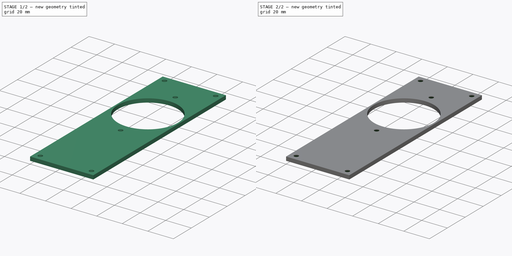
[diagram: build sequence overview — one tinted view per stage of 2, left to right]
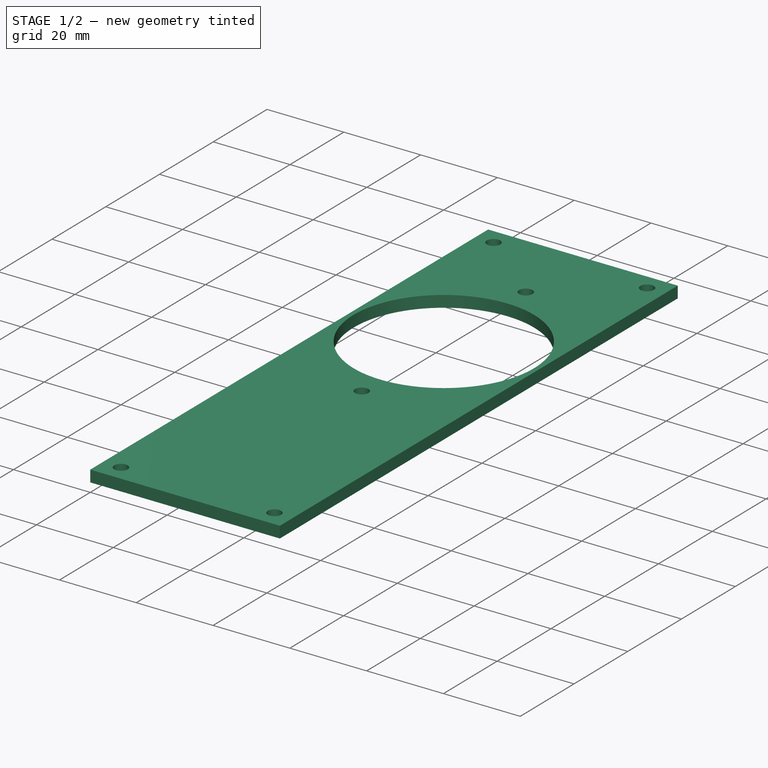
[diagram: stage 1 of 2 — iso view after this stage's code; geometry added in this stage tinted green]
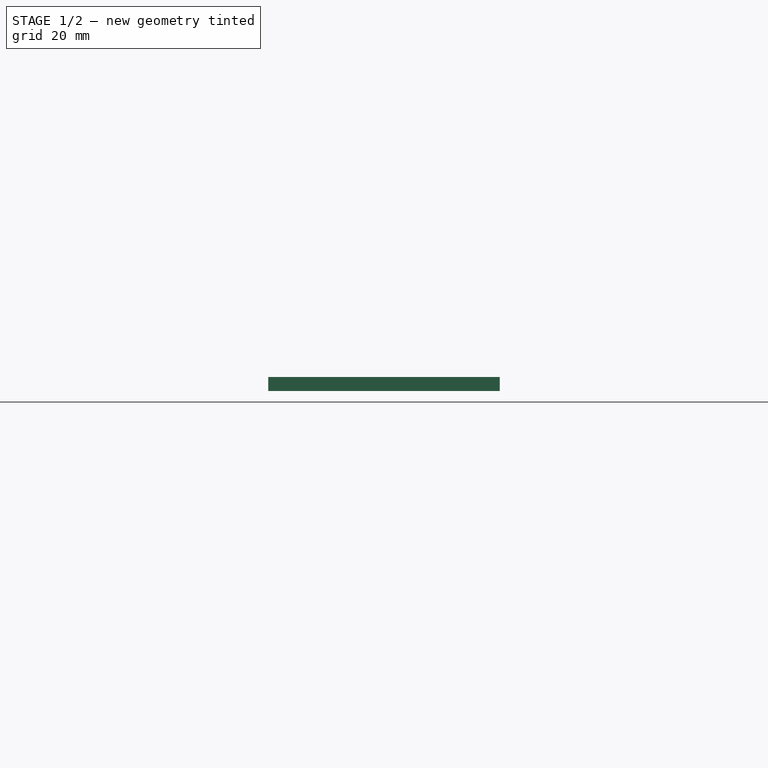
[diagram: stage 1 of 2 — front view after this stage's code; geometry added in this stage tinted green]
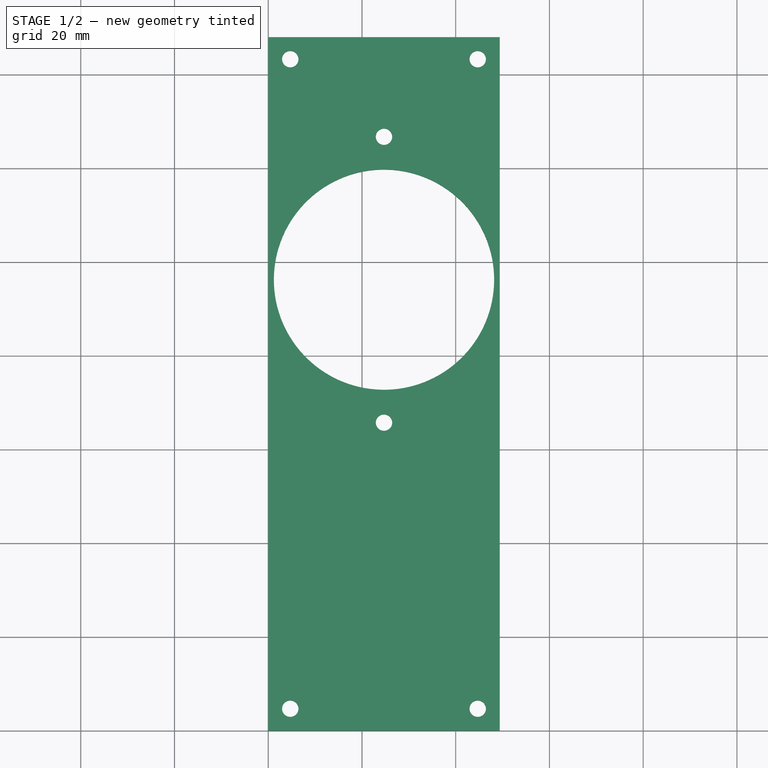
[diagram: stage 1 of 2 — top view after this stage's code; geometry added in this stage tinted green]
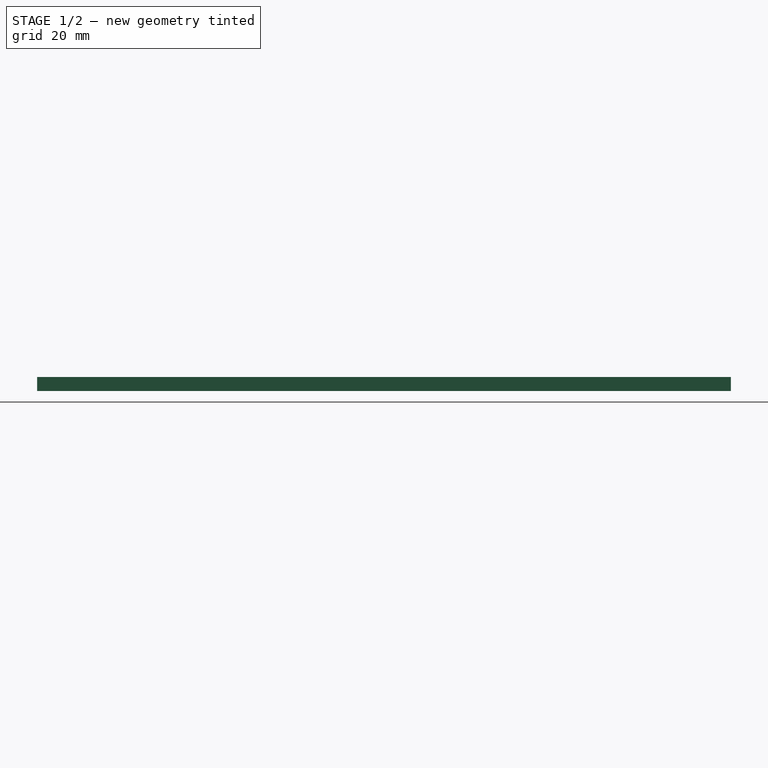
[diagram: stage 1 of 2 — right view after this stage's code; geometry added in this stage tinted green]
FCSTD DOCUMENT  (FreeCAD 0.21R33668 +7 (Git))
Label: speaker-mountplate
License: All rights reserved
LicenseURL: http://en.wikipedia.org/wiki/All_rights_reserved
objects: Sketcher::SketchObject×2, PartDesign::Pad×1, PartDesign::CoordinateSystem×1, PartDesign::Pocket×1, PartDesign::Chamfer×1, PartDesign::Body×1, App::Part×1
note: 10 computed .brp shape members not serialized (recipe doc carries the construction recipe); baked Part::Feature solids carry a one-line shape summary decoded from their .brp
EXTERNAL_REF file=planB.FCStd obj=Spreadsheet

FEATURE [Sketcher::SketchObject] Sketch
  FullyConstrained = false
  MapMode = 5
  Support = -> [XY_Plane]
  expr: Constraints[26] = planB#<<data>>.clearance_m3
  sketch-geometry (23):
    g0: LineSegment StartX=0 StartY=0 StartZ=0 EndX=49.4 EndY=0 EndZ=0
    g1: LineSegment StartX=49.4 StartY=0 StartZ=0 EndX=49.4 EndY=148 EndZ=0
    g2: LineSegment StartX=49.4 StartY=148 StartZ=0 EndX=0 EndY=148 EndZ=0
    g3: LineSegment StartX=0 StartY=148 StartZ=0 EndX=0 EndY=0 EndZ=0
    g4: LineSegment StartX=24.7 StartY=126.746 StartZ=0 EndX=24.7 EndY=96.246 EndZ=0
    g5: LineSegment StartX=24.7 StartY=96.246 StartZ=0 EndX=24.7 EndY=65.746 EndZ=0
    g6: LineSegment StartX=0 StartY=96.246 StartZ=0 EndX=24.7 EndY=96.246 EndZ=0
    g7: LineSegment StartX=24.7 StartY=96.246 StartZ=0 EndX=49.4 EndY=96.246 EndZ=0
    g8: Circle CenterX=24.7 CenterY=126.746 CenterZ=0 NormalX=0 NormalY=0 NormalZ=1 AngleXU=0 Radius=1.75
    g9: Circle CenterX=24.7 CenterY=65.746 CenterZ=0 NormalX=0 NormalY=0 NormalZ=1 AngleXU=0 Radius=1.75
    g10: Circle CenterX=24.7 CenterY=96.246 CenterZ=0 NormalX=0 NormalY=0 NormalZ=1 AngleXU=0 Radius=23.5
    g11: LineSegment StartX=4.7 StartY=143.3 StartZ=0 EndX=44.7 EndY=143.3 EndZ=0
    g12: LineSegment StartX=44.7 StartY=143.3 StartZ=0 EndX=44.7 EndY=4.7 EndZ=0
    g13: LineSegment StartX=44.7 StartY=4.7 StartZ=0 EndX=4.7 EndY=4.7 EndZ=0
    g14: LineSegment StartX=4.7 StartY=4.7 StartZ=0 EndX=4.7 EndY=143.3 EndZ=0
    g15: Circle CenterX=4.7 CenterY=143.3 CenterZ=0 NormalX=0 NormalY=0 NormalZ=1 AngleXU=0 Radius=1.75
    g16: Circle CenterX=44.7 CenterY=143.3 CenterZ=0 NormalX=0 NormalY=0 NormalZ=1 AngleXU=0 Radius=1.75
    g17: Circle CenterX=4.7 CenterY=4.7 CenterZ=0 NormalX=0 NormalY=0 NormalZ=1 AngleXU=0 Radius=1.75
    g18: Circle CenterX=44.7 CenterY=4.7 CenterZ=0 NormalX=0 NormalY=0 NormalZ=1 AngleXU=0 Radius=1.75
    g19: LineSegment StartX=4.7 StartY=143.3 StartZ=0 EndX=4.7 EndY=148 EndZ=0
    g20: LineSegment StartX=4.7 StartY=143.3 StartZ=0 EndX=0 EndY=143.3 EndZ=0
    g21: LineSegment StartX=44.7 StartY=4.7 StartZ=0 EndX=44.7 EndY=0 EndZ=0
    g22: LineSegment StartX=44.7 StartY=4.7 StartZ=0 EndX=49.4 EndY=4.7 EndZ=0
  constraints (61):
    c: Coincident(g0,g1)
    c: Coincident(g1,g2)
    c: Coincident(g2,g3)
    c: Coincident(g3,g0)
    c: Horizontal(g0)
    c: Horizontal(g2)
    c: Vertical(g1)
    c: Vertical(g3)
    c: Coincident(g0,g-1)
    c: DistanceY(g1) = 148
    c: DistanceX(g0,g0) = 49.4
    c: PointOnObject(g6,g3)
    c: PointOnObject(g7,g1)
    c: Coincident(g4,g5)
    c: Vertical(g4)
    c: Vertical(g5)
    c: Coincident(g6,g7)
    c: Horizontal(g6)
    c: Horizontal(g7)
    c: Coincident(g4,g6)
    c: Equal(g7,g6)
    c: Equal(g5,g4)
    c: DistanceY(g5,g4) = 61
    c: Coincident(g8,g4)
    c: Coincident(g9,g5)
    c: Equal(g9,g8)
    c: Diameter(g8) = 3.5
    c: Coincident(g10,g4)
    c: Diameter(g10) = 47
    c: Coincident(g11,g12)
    c: Coincident(g12,g13)
    c: Coincident(g13,g14)
    c: Coincident(g14,g11)
    c: Horizontal(g11)
    c: Horizontal(g13)
    c: Vertical(g12)
    c: Vertical(g14)
    c: Coincident(g15,g11)
    c: Coincident(g16,g11)
    c: Coincident(g17,g13)
    c: Coincident(g18,g12)
    c: Equal(g18,g17)
    c: Equal(g17,g16)
    c: Equal(g16,g15)
    c: Equal(g15,g8)
    c: Coincident(g19,g15)
    c: PointOnObject(g19,g2)
    c: Vertical(g19)
    c: Coincident(g20,g15)
    c: PointOnObject(g20,g3)
    c: Horizontal(g20)
    c: Equal(g20,g19)
    c: Coincident(g21,g18)
    c: Vertical(g21)
    c: Coincident(g22,g18)
    c: PointOnObject(g22,g1)
    c: Horizontal(g22)
    c: Equal(g22,g21)
    c: Equal(g21,g20)
    c: Distance(g19) = 4.7
    c: PointOnObject(g21,g0)
FEATURE [PartDesign::Pad] Pad
  Direction = (0,0,1)
  Length = 3
  Length2 = 10
  Profile = -> Sketch
  ReferenceAxis = -> Sketch [N_Axis]
  Type = 0
FEATURE [PartDesign::CoordinateSystem] LCS_0
  AttacherType = Attacher::AttachEngine3D
  MapMode = 2
  Support = -> [X_Axis001]
FEATURE [Sketcher::SketchObject] Sketch001
  FullyConstrained = true
  MapMode = 5
  Support = -> [XY_Plane]
  sketch-geometry (4):
    g0: Circle CenterX=24.7 CenterY=142 CenterZ=0 NormalX=0 NormalY=0 NormalZ=1 AngleXU=0 Radius=3.1
    g1: Circle CenterX=24.7 CenterY=48 CenterZ=0 NormalX=0 NormalY=0 NormalZ=1 AngleXU=0 Radius=3.1
    g2: Circle CenterX=24.7 CenterY=6 CenterZ=0 NormalX=0 NormalY=0 NormalZ=1 AngleXU=0 Radius=3.1
    g3: LineSegment StartX=24.7 StartY=142 StartZ=0 EndX=24.7 EndY=6 EndZ=0
  constraints (11):
    c: Equal(g2,g1)
    c: Equal(g1,g0)
    c: Diameter(g0) = 6.2
    c: Coincident(g3,g0)
    c: Coincident(g3,g2)
    c: Vertical(g3)
    c: PointOnObject(g1,g3)
    c: DistanceX(g0) = 24.7
    c: DistanceY(g0) = 142
    c: DistanceY(g2) = 6
    c: DistanceY(g1) = 48
FEATURE [PartDesign::Pocket] Pocket  label="magnet holes"
  BaseFeature = -> Pad
  Direction = (0,0,-1)
  Length = 2.1
  Length2 = 5
  Profile = -> Sketch001
  ReferenceAxis = -> Sketch001 [N_Axis]
  Reversed = true
  Type = 0
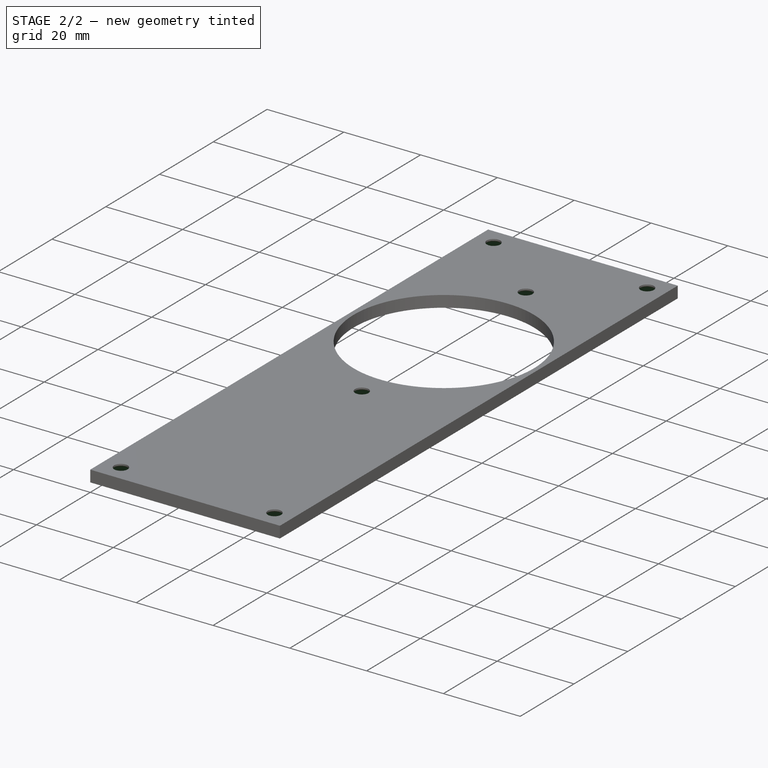
[diagram: stage 2 of 2 — iso view after this stage's code; geometry added in this stage tinted green]
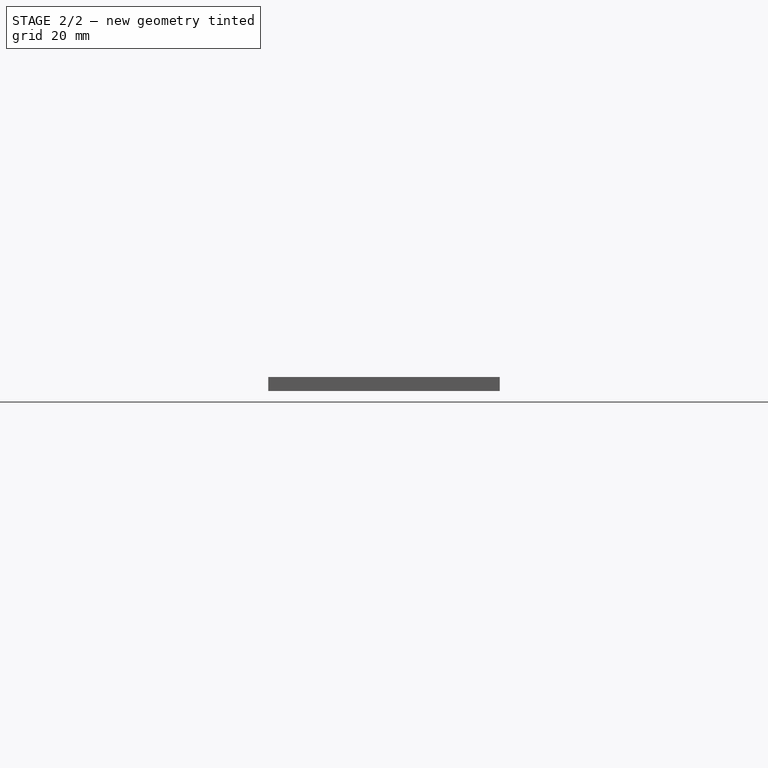
[diagram: stage 2 of 2 — front view after this stage's code; geometry added in this stage tinted green]
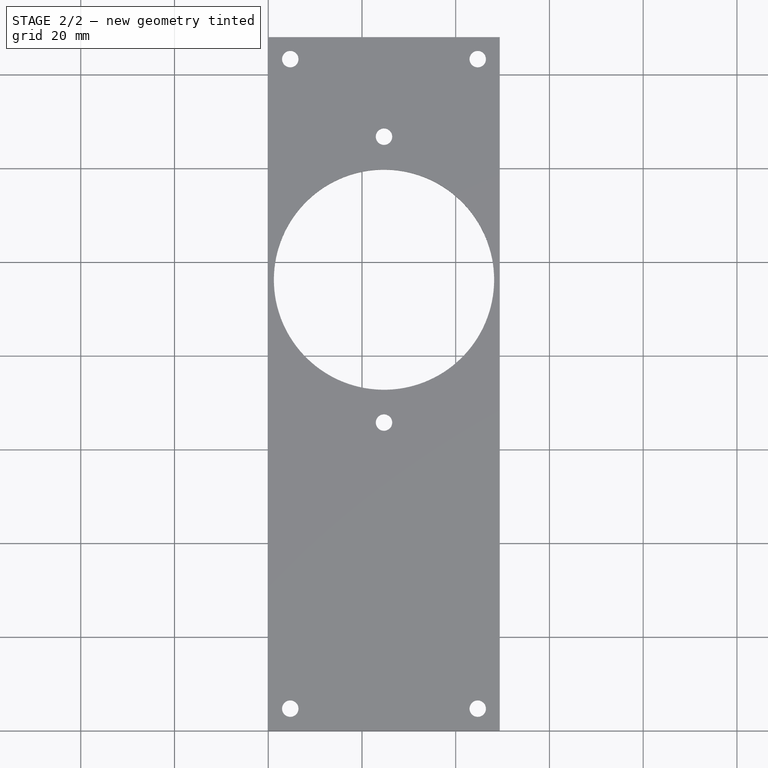
[diagram: stage 2 of 2 — top view after this stage's code; geometry added in this stage tinted green]
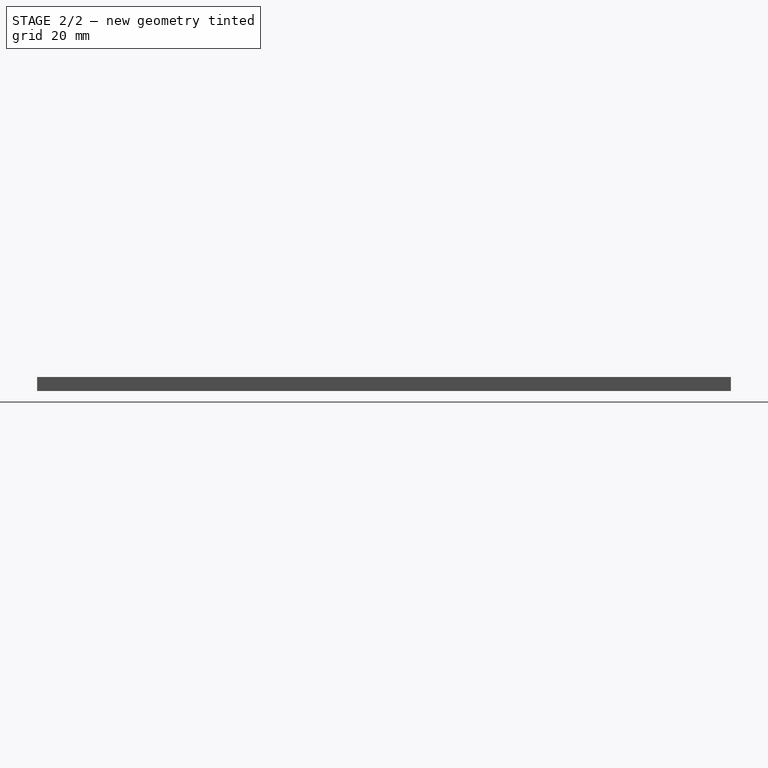
[diagram: stage 2 of 2 — right view after this stage's code; geometry added in this stage tinted green]
FEATURE [PartDesign::Chamfer] Chamfer
  Angle = 45
  Base = -> Pocket [Edge21,Edge17,Edge12,Edge16,Edge19,Edge14]
  BaseFeature = -> Pocket
  ChamferType = 0
  FlipDirection = false
  Size = 2.6
  Size2 = 1
  SupportTransform = false
  UseAllEdges = false
FEATURE [PartDesign::Body] Body
  Group = -> [Sketch,Pad,Sketch001,Pocket,Chamfer]
  Origin = -> Origin
  Tip = -> Chamfer
FEATURE [App::Part] speaker_mountplate
  Group = -> [LCS_0,Body]
  Origin = -> Origin001
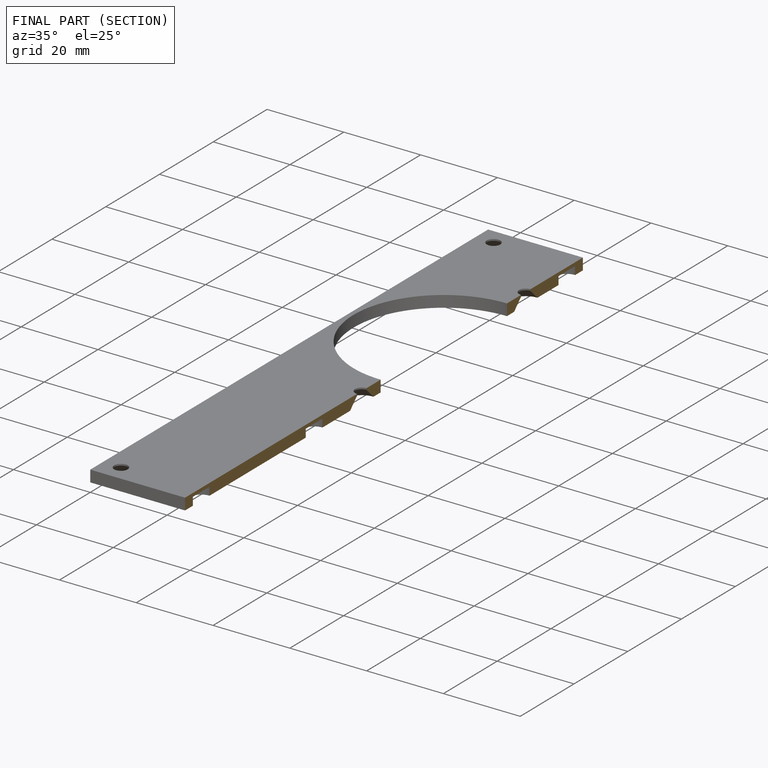
[diagram: finished part — half-section view (interior)]
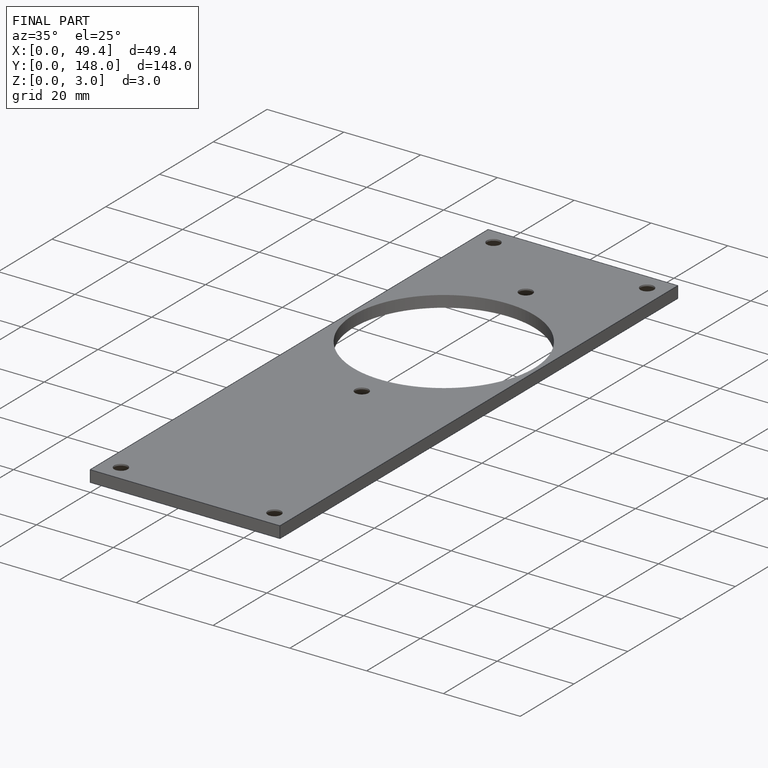
[diagram: finished part — iso view with bounding-box wireframe]
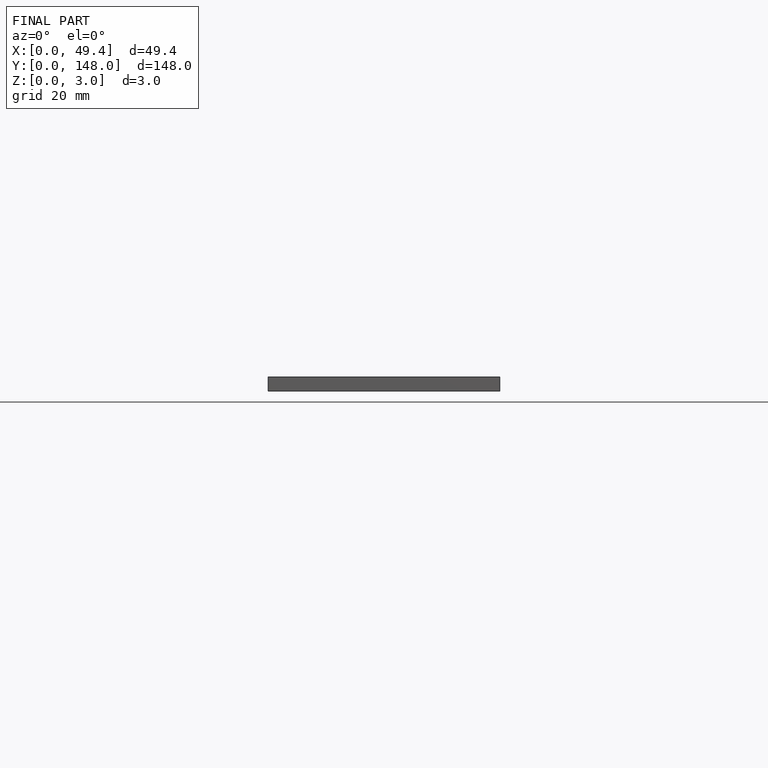
[diagram: finished part — front view with bounding-box wireframe]
